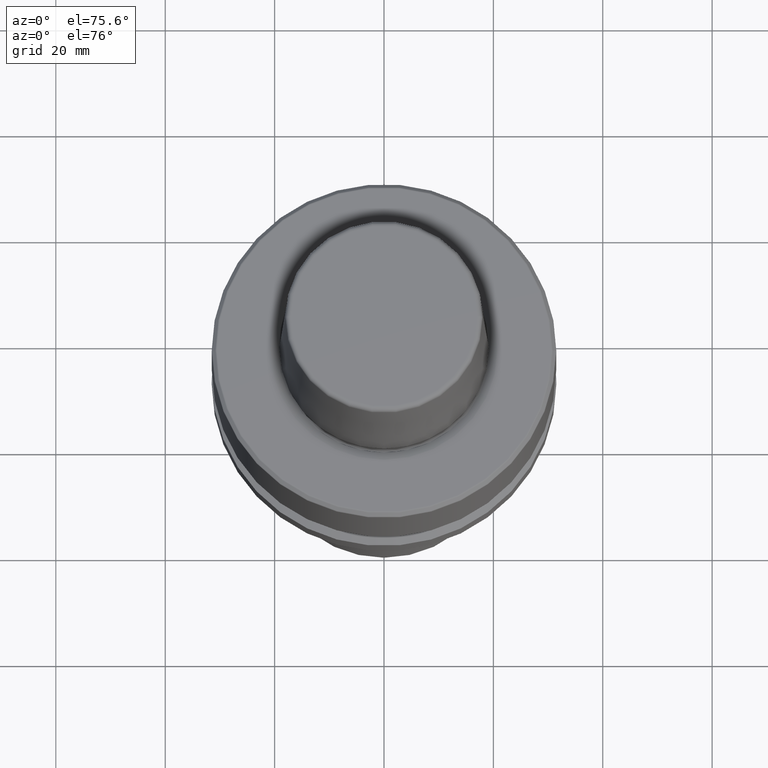
[diagram: clean part render]
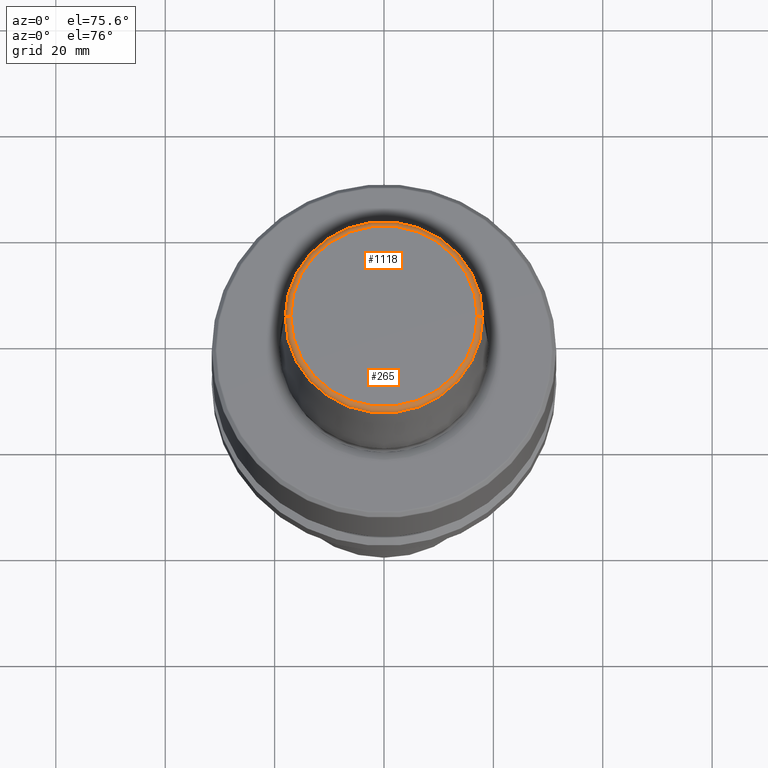
[diagram: same view with one multi-face feature highlighted, each face labeled with its STEP entity id]
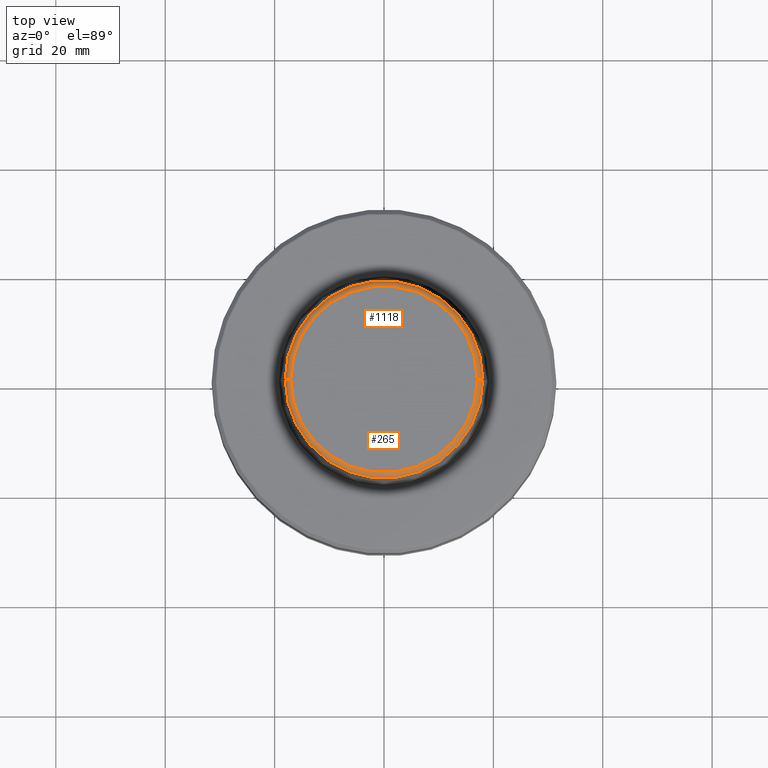
[diagram: same view with one multi-face feature highlighted, each face labeled with its STEP entity id]
A machine part, auxiliary view. The highlighted faces form ONE feature: a constant-radius fillet chain: 2 tangent blend faces with common blend radius 1 mm. The faces share edges in the B-rep.
A second angle (top view) of the same feature is appended — it is thin or edge-on in the first view.
Their STEP definitions:
[1] entity #265 (Torus):
#10 = CIRCLE ( 'NONE', #245, 1.000000000000000900 ) ;
#26 = FACE_OUTER_BOUND ( 'NONE', #1321, .T. ) ;
#109 = EDGE_CURVE ( 'NONE', #1528, #1073, #10, .T. ) ;
#166 = DIRECTION ( 'NONE',  ( 1.000000000000000000, 0.0000000000000000000, 0.0000000000000000000 ) ) ;
#192 = ORIENTED_EDGE ( 'NONE', *, *, #1075, .T. ) ;
#245 = AXIS2_PLACEMENT_3D ( 'NONE', #377, #495, #353 ) ;
#251 = DIRECTION ( 'NONE',  ( -0.0000000000000000000, -0.0000000000000000000, 1.000000000000000000 ) ) ;
#265 = ADVANCED_FACE ( 'NONE', ( #26 ), #1337, .T. ) ;
#272 = VERTEX_POINT ( 'NONE', #1069 ) ;
#294 = CIRCLE ( 'NONE', #1081, 17.05687731099929700 ) ;
#323 = DIRECTION ( 'NONE',  ( 0.0000000000000000000, -1.000000000000000000, 0.0000000000000000000 ) ) ;
#347 = CARTESIAN_POINT ( 'NONE',  ( 0.0000000000000000000, 0.0000000000000000000, 18.95003611051311100 ) ) ;
#353 = DIRECTION ( 'NONE',  ( -1.000000000000000000, 1.224646799147353500E-016, 0.0000000000000000000 ) ) ;
#377 = CARTESIAN_POINT ( 'NONE',  ( -17.05687731099929700, 2.088865020236440200E-015, 18.89999999999999500 ) ) ;
#378 = EDGE_CURVE ( 'NONE', #1073, #272, #294, .T. ) ;
#390 = ORIENTED_EDGE ( 'NONE', *, *, #1419, .T. ) ;
#391 = CARTESIAN_POINT ( 'NONE',  ( -17.05687731099929700, 2.150020661136116000E-015, 19.89999999999999500 ) ) ;
#495 = DIRECTION ( 'NONE',  ( 1.224646799147353200E-016, 1.000000000000000000, 0.0000000000000000000 ) ) ;
#581 = DIRECTION ( 'NONE',  ( -0.0000000000000000000, -0.0000000000000000000, 1.000000000000000000 ) ) ;
#593 = DIRECTION ( 'NONE',  ( 1.000000000000000000, 0.0000000000000000000, 0.0000000000000000000 ) ) ;
#637 = DIRECTION ( 'NONE',  ( 0.0000000000000000000, 0.0000000000000000000, -1.000000000000000000 ) ) ;
#644 = ORIENTED_EDGE ( 'NONE', *, *, #378, .F. ) ;
#645 = AXIS2_PLACEMENT_3D ( 'NONE', #1149, #323, #637 ) ;
#666 = CARTESIAN_POINT ( 'NONE',  ( -18.05562472032996600, 0.0000000000000000000, 18.95003611051311100 ) ) ;
#811 = DIRECTION ( 'NONE',  ( 1.000000000000000000, 0.0000000000000000000, 0.0000000000000000000 ) ) ;
#992 = ORIENTED_EDGE ( 'NONE', *, *, #109, .F. ) ;
#1000 = CARTESIAN_POINT ( 'NONE',  ( 18.05562472032996600, 2.278511783901871400E-015, 18.95003611051311100 ) ) ;
#1052 = CARTESIAN_POINT ( 'NONE',  ( 0.0000000000000000000, 0.0000000000000000000, 19.89999999999999500 ) ) ;
#1069 = CARTESIAN_POINT ( 'NONE',  ( 17.05687731099929700, 0.0000000000000000000, 19.89999999999999500 ) ) ;
#1073 = VERTEX_POINT ( 'NONE', #391 ) ;
#1075 = EDGE_CURVE ( 'NONE', #1080, #272, #1443, .T. ) ;
#1080 = VERTEX_POINT ( 'NONE', #1000 ) ;
#1081 = AXIS2_PLACEMENT_3D ( 'NONE', #1052, #1318, #811 ) ;
#1129 = CIRCLE ( 'NONE', #1334, 18.05562472032996600 ) ;
#1149 = CARTESIAN_POINT ( 'NONE',  ( 17.05687731099929700, 0.0000000000000000000, 18.89999999999999500 ) ) ;
#1318 = DIRECTION ( 'NONE',  ( -0.0000000000000000000, -0.0000000000000000000, 1.000000000000000000 ) ) ;
#1321 = EDGE_LOOP ( 'NONE', ( #992, #390, #192, #644 ) ) ;
#1334 = AXIS2_PLACEMENT_3D ( 'NONE', #347, #581, #166 ) ;
#1337 = TOROIDAL_SURFACE ( 'NONE', #1526, 17.05687731099929700, 1.000000000000000400 ) ;
#1419 = EDGE_CURVE ( 'NONE', #1528, #1080, #1129, .T. ) ;
#1443 = CIRCLE ( 'NONE', #645, 1.000000000000000900 ) ;
#1446 = CARTESIAN_POINT ( 'NONE',  ( 0.0000000000000000000, 0.0000000000000000000, 18.89999999999999500 ) ) ;
#1526 = AXIS2_PLACEMENT_3D ( 'NONE', #1446, #251, #593 ) ;
#1528 = VERTEX_POINT ( 'NONE', #666 ) ;
[2] entity #1118 (Torus):
#10 = CIRCLE ( 'NONE', #245, 1.000000000000000900 ) ;
#84 = DIRECTION ( 'NONE',  ( 1.000000000000000000, 0.0000000000000000000, 0.0000000000000000000 ) ) ;
#109 = EDGE_CURVE ( 'NONE', #1528, #1073, #10, .T. ) ;
#245 = AXIS2_PLACEMENT_3D ( 'NONE', #377, #495, #353 ) ;
#272 = VERTEX_POINT ( 'NONE', #1069 ) ;
#323 = DIRECTION ( 'NONE',  ( 0.0000000000000000000, -1.000000000000000000, 0.0000000000000000000 ) ) ;
#353 = DIRECTION ( 'NONE',  ( -1.000000000000000000, 1.224646799147353500E-016, 0.0000000000000000000 ) ) ;
#377 = CARTESIAN_POINT ( 'NONE',  ( -17.05687731099929700, 2.088865020236440200E-015, 18.89999999999999500 ) ) ;
#391 = CARTESIAN_POINT ( 'NONE',  ( -17.05687731099929700, 2.150020661136116000E-015, 19.89999999999999500 ) ) ;
#399 = DIRECTION ( 'NONE',  ( -0.0000000000000000000, -0.0000000000000000000, 1.000000000000000000 ) ) ;
#442 = AXIS2_PLACEMENT_3D ( 'NONE', #849, #399, #84 ) ;
#475 = CIRCLE ( 'NONE', #442, 17.05687731099929700 ) ;
#495 = DIRECTION ( 'NONE',  ( 1.224646799147353200E-016, 1.000000000000000000, 0.0000000000000000000 ) ) ;
#571 = TOROIDAL_SURFACE ( 'NONE', #976, 17.05687731099929700, 1.000000000000000400 ) ;
#637 = DIRECTION ( 'NONE',  ( 0.0000000000000000000, 0.0000000000000000000, -1.000000000000000000 ) ) ;
#645 = AXIS2_PLACEMENT_3D ( 'NONE', #1149, #323, #637 ) ;
#657 = EDGE_CURVE ( 'NONE', #272, #1073, #475, .T. ) ;
#666 = CARTESIAN_POINT ( 'NONE',  ( -18.05562472032996600, 0.0000000000000000000, 18.95003611051311100 ) ) ;
#672 = DIRECTION ( 'NONE',  ( -0.0000000000000000000, -0.0000000000000000000, 1.000000000000000000 ) ) ;
#829 = ORIENTED_EDGE ( 'NONE', *, *, #109, .T. ) ;
#849 = CARTESIAN_POINT ( 'NONE',  ( 0.0000000000000000000, 0.0000000000000000000, 19.89999999999999500 ) ) ;
#852 = ORIENTED_EDGE ( 'NONE', *, *, #1075, .F. ) ;
#892 = ORIENTED_EDGE ( 'NONE', *, *, #1533, .T. ) ;
#976 = AXIS2_PLACEMENT_3D ( 'NONE', #1050, #1327, #1405 ) ;
#1000 = CARTESIAN_POINT ( 'NONE',  ( 18.05562472032996600, 2.278511783901871400E-015, 18.95003611051311100 ) ) ;
#1035 = EDGE_LOOP ( 'NONE', ( #892, #829, #1130, #852 ) ) ;
#1050 = CARTESIAN_POINT ( 'NONE',  ( 0.0000000000000000000, 0.0000000000000000000, 18.89999999999999500 ) ) ;
#1069 = CARTESIAN_POINT ( 'NONE',  ( 17.05687731099929700, 0.0000000000000000000, 19.89999999999999500 ) ) ;
#1073 = VERTEX_POINT ( 'NONE', #391 ) ;
#1075 = EDGE_CURVE ( 'NONE', #1080, #272, #1443, .T. ) ;
#1080 = VERTEX_POINT ( 'NONE', #1000 ) ;
#1101 = AXIS2_PLACEMENT_3D ( 'NONE', #1388, #672, #1509 ) ;
#1118 = ADVANCED_FACE ( 'NONE', ( #1250 ), #571, .T. ) ;
#1130 = ORIENTED_EDGE ( 'NONE', *, *, #657, .F. ) ;
#1149 = CARTESIAN_POINT ( 'NONE',  ( 17.05687731099929700, 0.0000000000000000000, 18.89999999999999500 ) ) ;
#1250 = FACE_OUTER_BOUND ( 'NONE', #1035, .T. ) ;
#1310 = CIRCLE ( 'NONE', #1101, 18.05562472032996600 ) ;
#1327 = DIRECTION ( 'NONE',  ( -0.0000000000000000000, -0.0000000000000000000, 1.000000000000000000 ) ) ;
#1388 = CARTESIAN_POINT ( 'NONE',  ( 0.0000000000000000000, 0.0000000000000000000, 18.95003611051311100 ) ) ;
#1405 = DIRECTION ( 'NONE',  ( 1.000000000000000000, 0.0000000000000000000, 0.0000000000000000000 ) ) ;
#1443 = CIRCLE ( 'NONE', #645, 1.000000000000000900 ) ;
#1509 = DIRECTION ( 'NONE',  ( 1.000000000000000000, 0.0000000000000000000, 0.0000000000000000000 ) ) ;
#1528 = VERTEX_POINT ( 'NONE', #666 ) ;
#1533 = EDGE_CURVE ( 'NONE', #1080, #1528, #1310, .T. ) ;